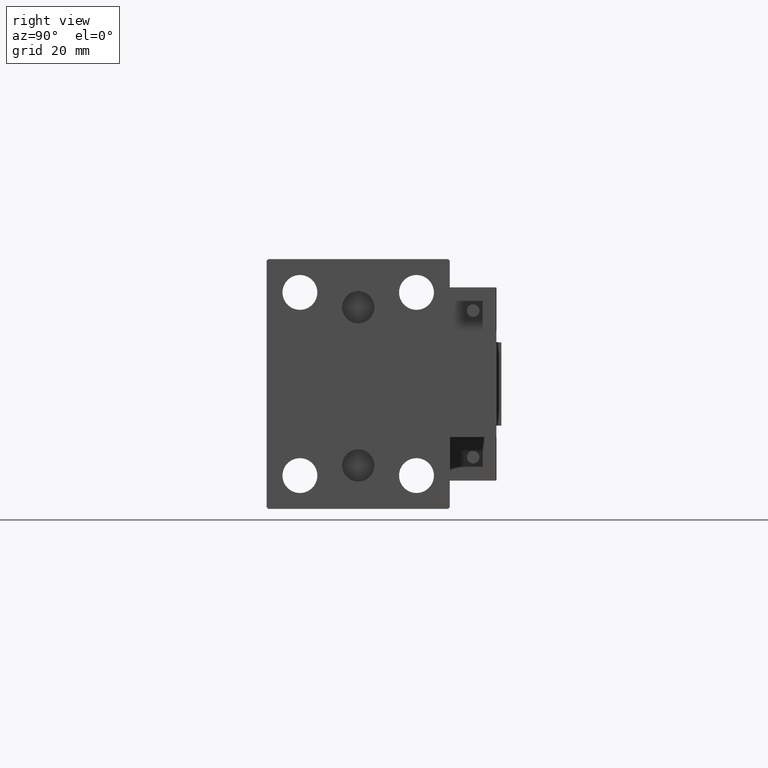
[diagram: clean part render]
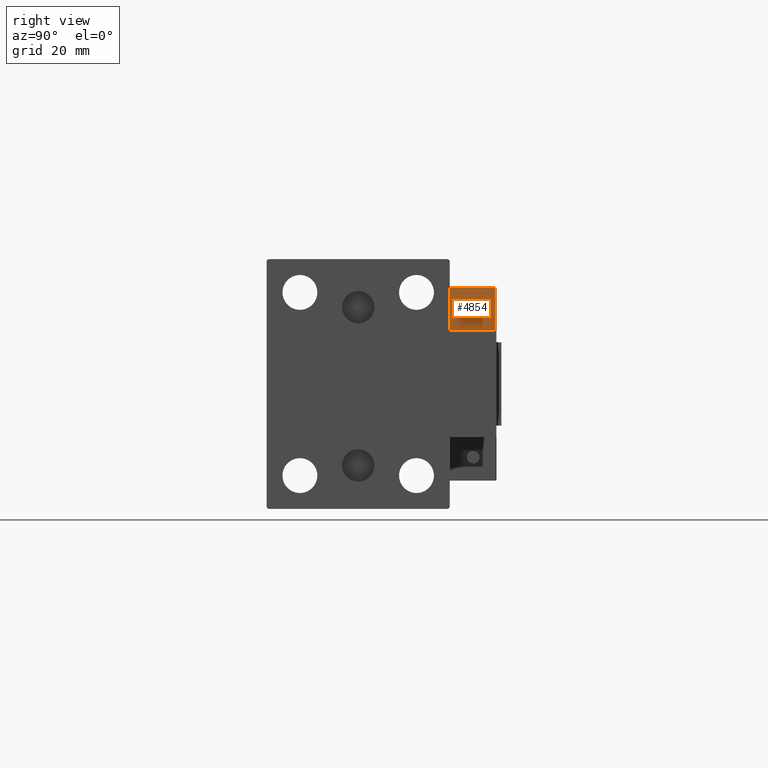
[diagram: same view with one face highlighted and labeled with its STEP entity id]
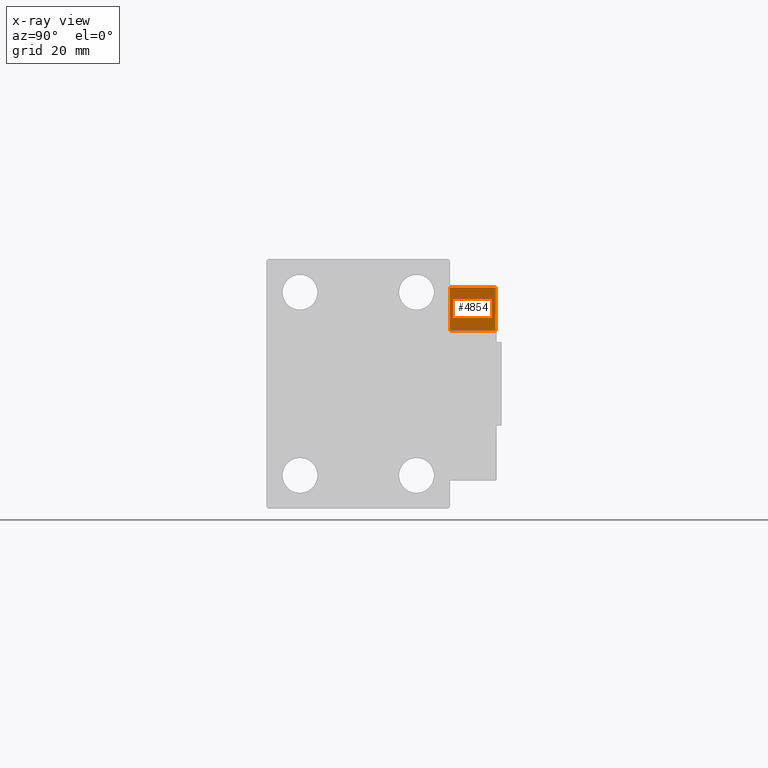
[diagram: x-ray of the same camera — body ghosted, the highlighted face saturated]
A machine part, right view. The second image highlights one B-rep face of the part: STEP entity #4854.
The next image is the same camera in x-ray: the body ghosted, the highlighted face saturated — about 6% of this face is hidden behind the body in this view.
In plain terms, the highlighted planar face has unit normal (-1, 0, 0).
Its self-contained STEP definition (entity closure, byte-faithful):
#2249 = VECTOR ( 'NONE', #32126, 1000.000000000000000 ) ;
#4827 = VECTOR ( 'NONE', #31259, 1000.000000000000000 ) ;
#4852 = ORIENTED_EDGE ( 'NONE', *, *, #16770, .F. ) ;
#4854 = ADVANCED_FACE ( 'NONE', ( #22519 ), #14941, .F. ) ;
#5269 = CARTESIAN_POINT ( 'NONE',  ( -26.99999999999994671, 7.000000000000005329, 13.70000000000000107 ) ) ;
#7370 = CARTESIAN_POINT ( 'NONE',  ( -26.99999999999993605, 20.00000000000002132, 14.00000000000000000 ) ) ;
#7387 = DIRECTION ( 'NONE',  ( 8.006416042969869188E-16, 1.000000000000000000, 0.000000000000000000 ) ) ;
#8141 = LINE ( 'NONE', #7370, #2249 ) ;
#10669 = VERTEX_POINT ( 'NONE', #40127 ) ;
#11185 = CARTESIAN_POINT ( 'NONE',  ( -26.99999999999994671, 7.000000000000005329, 14.00000000000000000 ) ) ;
#13667 = VECTOR ( 'NONE', #27065, 1000.000000000000000 ) ;
#13685 = EDGE_CURVE ( 'NONE', #30777, #10669, #39103, .T. ) ;
#13987 = VERTEX_POINT ( 'NONE', #23794 ) ;
#14941 = PLANE ( 'NONE',  #41884 ) ;
#15352 = DIRECTION ( 'NONE',  ( 8.006416042969869188E-16, 1.000000000000000000, -0.000000000000000000 ) ) ;
#16136 = CARTESIAN_POINT ( 'NONE',  ( -26.99999999999993605, 20.00000000000002132, 0.000000000000000000 ) ) ;
#16770 = EDGE_CURVE ( 'NONE', #30777, #13987, #50854, .T. ) ;
#19270 = CARTESIAN_POINT ( 'NONE',  ( -26.99999999999993605, 20.00000000000002132, 13.70000000000000107 ) ) ;
#22519 = FACE_OUTER_BOUND ( 'NONE', #25660, .T. ) ;
#22775 = DIRECTION ( 'NONE',  ( 1.000000000000000000, -8.006416042969869188E-16, 0.000000000000000000 ) ) ;
#23794 = CARTESIAN_POINT ( 'NONE',  ( -26.99999999999994671, 7.000000000000005329, 0.000000000000000000 ) ) ;
#25660 = EDGE_LOOP ( 'NONE', ( #4852, #34694, #44297, #37285 ) ) ;
#27065 = DIRECTION ( 'NONE',  ( -0.000000000000000000, -0.000000000000000000, -1.000000000000000000 ) ) ;
#27157 = EDGE_CURVE ( 'NONE', #50023, #13987, #47200, .T. ) ;
#30777 = VERTEX_POINT ( 'NONE', #5269 ) ;
#31259 = DIRECTION ( 'NONE',  ( -8.006416042969869188E-16, -1.000000000000000000, 0.000000000000000000 ) ) ;
#32126 = DIRECTION ( 'NONE',  ( -0.000000000000000000, -0.000000000000000000, -1.000000000000000000 ) ) ;
#34694 = ORIENTED_EDGE ( 'NONE', *, *, #13685, .T. ) ;
#36035 = VECTOR ( 'NONE', #15352, 1000.000000000000000 ) ;
#37285 = ORIENTED_EDGE ( 'NONE', *, *, #27157, .T. ) ;
#39103 = LINE ( 'NONE', #19270, #36035 ) ;
#39637 = EDGE_CURVE ( 'NONE', #10669, #50023, #8141, .T. ) ;
#39690 = CARTESIAN_POINT ( 'NONE',  ( -26.99999999999993605, 20.00000000000002132, 0.000000000000000000 ) ) ;
#40127 = CARTESIAN_POINT ( 'NONE',  ( -26.99999999999993605, 20.00000000000002132, 13.70000000000000107 ) ) ;
#41884 = AXIS2_PLACEMENT_3D ( 'NONE', #42350, #22775, #7387 ) ;
#42350 = CARTESIAN_POINT ( 'NONE',  ( -26.99999999999993605, 20.00000000000002132, 14.00000000000000000 ) ) ;
#44297 = ORIENTED_EDGE ( 'NONE', *, *, #39637, .T. ) ;
#47200 = LINE ( 'NONE', #16136, #4827 ) ;
#50023 = VERTEX_POINT ( 'NONE', #39690 ) ;
#50854 = LINE ( 'NONE', #11185, #13667 ) ;